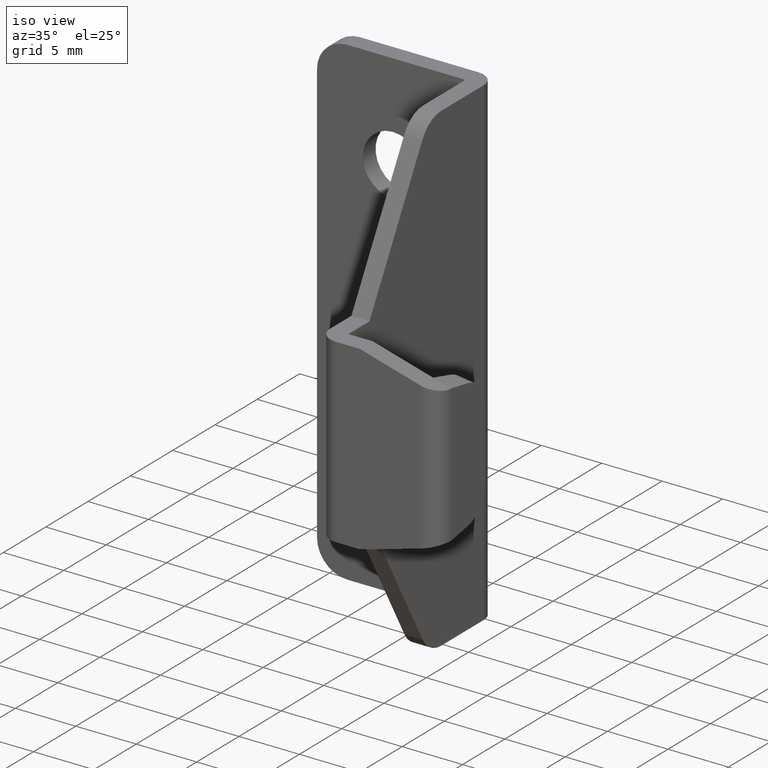
[diagram: clean part render]
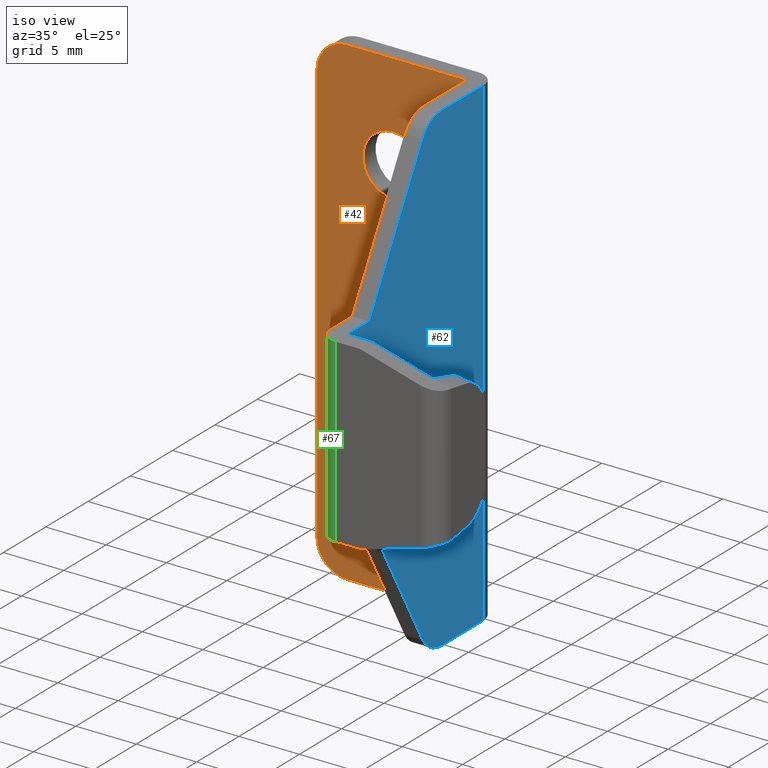
[diagram: same view with three faces highlighted in distinct colors, each labeled with its STEP entity id]
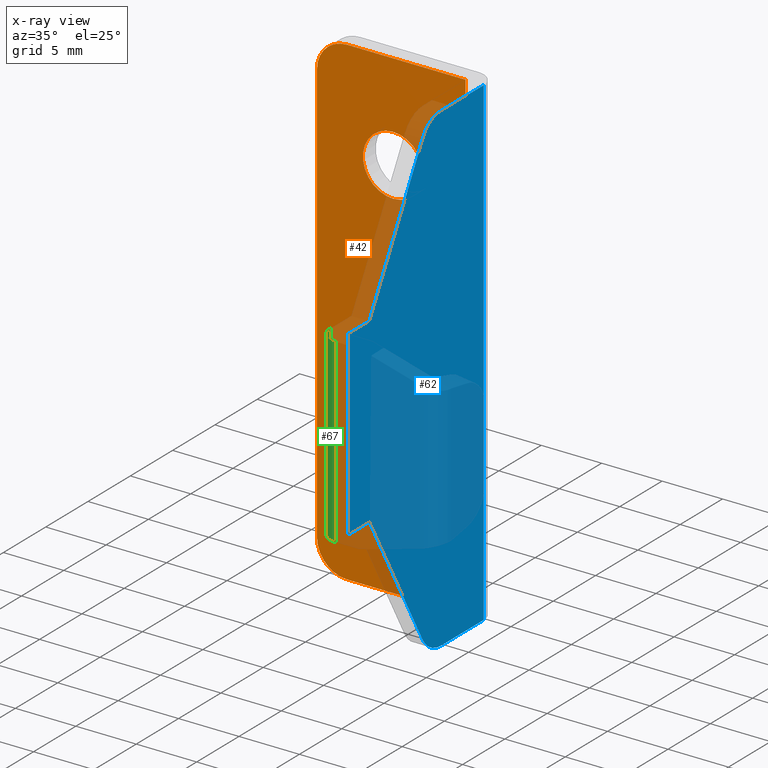
[diagram: x-ray of the same camera — body ghosted, the three highlighted faces saturated]
A machine part, iso view with three faces highlighted in distinct colors.
The next image is the same camera in x-ray (body ghosted, the three faces saturated) — at least one of them is partly hidden behind the body in this view.
Their STEP definitions:

[orange] entity #42 — the highlighted planar face has unit normal (0, -1, 0).
#42=ADVANCED_FACE('',(#94,#95,#96),#93,.T.);
#93=PLANE('',#428);
#94=FACE_OUTER_BOUND('',#429,.T.);
#95=FACE_BOUND('',#430,.T.);
#96=FACE_BOUND('',#431,.T.);
#425=CARTESIAN_POINT('',(-1.22999880000E+00,-1.50000000000E+00,2.40000000000E+01));
#426=DIRECTION('',(0.00000000000E+00,-1.00000000000E+00,0.00000000000E+00));
#427=DIRECTION('',(0.00000000000E+00,0.00000000000E+00,-1.00000000000E+00));
#428=AXIS2_PLACEMENT_3D('',#425,#426,#427);
#429=EDGE_LOOP('',(#600,#601,#602,#603,#604,#605));
#430=EDGE_LOOP('',(#606,#607));
#431=EDGE_LOOP('',(#608,#609));
#600=ORIENTED_EDGE('',*,*,#778,.F.);
#601=ORIENTED_EDGE('',*,*,#779,.F.);
#602=ORIENTED_EDGE('',*,*,#780,.T.);
#603=ORIENTED_EDGE('',*,*,#781,.F.);
#604=ORIENTED_EDGE('',*,*,#782,.T.);
#605=ORIENTED_EDGE('',*,*,#783,.F.);
#606=ORIENTED_EDGE('',*,*,#784,.F.);
#607=ORIENTED_EDGE('',*,*,#785,.F.);
#608=ORIENTED_EDGE('',*,*,#786,.F.);
#609=ORIENTED_EDGE('',*,*,#787,.F.);
#778=EDGE_CURVE('',#915,#916,#917,.T.);
#779=EDGE_CURVE('',#923,#915,#924,.T.);
#780=EDGE_CURVE('',#923,#930,#931,.T.);
#781=EDGE_CURVE('',#937,#930,#938,.T.);
#782=EDGE_CURVE('',#937,#944,#945,.T.);
#783=EDGE_CURVE('',#916,#944,#951,.T.);
#784=EDGE_CURVE('',#957,#958,#959,.T.);
#785=EDGE_CURVE('',#958,#957,#965,.T.);
#786=EDGE_CURVE('',#971,#972,#973,.T.);
#787=EDGE_CURVE('',#972,#971,#979,.T.);
#915=VERTEX_POINT('',#1515);
#916=VERTEX_POINT('',#1516);
#917=LINE('',#1517,#1518);
#923=VERTEX_POINT('',#1520);
#924=LINE('',#1521,#1522);
#930=VERTEX_POINT('',#1524);
#931=CIRCLE('',#1528,2.50000000000E+00);
#937=VERTEX_POINT('',#1529);
#938=LINE('',#1530,#1531);
#944=VERTEX_POINT('',#1533);
#945=CIRCLE('',#1537,2.50000000000E+00);
#951=LINE('',#1538,#1539);
#957=VERTEX_POINT('',#1541);
#958=VERTEX_POINT('',#1542);
#959=CIRCLE('',#1546,2.50000000000E+00);
#965=CIRCLE('',#1550,2.50000000000E+00);
#971=VERTEX_POINT('',#1551);
#972=VERTEX_POINT('',#1552);
#973=CIRCLE('',#1556,2.50000000000E+00);
#979=CIRCLE('',#1560,2.50000000000E+00);
#1515=CARTESIAN_POINT('',(1.22999880000E+01,-1.50000000000E+00,2.00000000000E+01));
#1516=CARTESIAN_POINT('',(1.22999880000E+01,-1.50000000000E+00,-2.00000000000E+01));
#1517=CARTESIAN_POINT('',(1.22999880000E+01,-1.50000000000E+00,2.00000000000E+01));
#1518=VECTOR('',#1519,4.00000000000E+01);
#1519=DIRECTION('',(0.00000000000E+00,0.00000000000E+00,-1.00000000000E+00));
#1520=CARTESIAN_POINT('',(2.50000000000E+00,-1.50000000000E+00,2.00000000000E+01));
#1521=CARTESIAN_POINT('',(2.50000000000E+00,-1.50000000000E+00,2.00000000000E+01));
#1522=VECTOR('',#1523,9.79998800000E+00);
#1523=DIRECTION('',(1.00000000000E+00,0.00000000000E+00,0.00000000000E+00));
#1524=CARTESIAN_POINT('',(0.00000000000E+00,-1.50000000000E+00,1.75000000000E+01));
#1525=CARTESIAN_POINT('',(2.50000000000E+00,-1.50000000000E+00,1.75000000000E+01));
#1526=DIRECTION('',(0.00000000000E+00,-1.00000000000E+00,0.00000000000E+00));
#1527=DIRECTION('',(-0.00000000000E+00,-0.00000000000E+00,1.00000000000E+00));
#1528=AXIS2_PLACEMENT_3D('',#1525,#1526,#1527);
#1529=CARTESIAN_POINT('',(0.00000000000E+00,-1.50000000000E+00,-1.75000000000E+01));
#1530=CARTESIAN_POINT('',(0.00000000000E+00,-1.50000000000E+00,-1.75000000000E+01));
#1531=VECTOR('',#1532,3.50000000000E+01);
#1532=DIRECTION('',(0.00000000000E+00,0.00000000000E+00,1.00000000000E+00));
#1533=CARTESIAN_POINT('',(2.50000000000E+00,-1.50000000000E+00,-2.00000000000E+01));
#1534=CARTESIAN_POINT('',(2.50000000000E+00,-1.50000000000E+00,-1.75000000000E+01));
#1535=DIRECTION('',(0.00000000000E+00,-1.00000000000E+00,0.00000000000E+00));
#1536=DIRECTION('',(-0.00000000000E+00,-0.00000000000E+00,1.00000000000E+00));
#1537=AXIS2_PLACEMENT_3D('',#1534,#1535,#1536);
#1538=CARTESIAN_POINT('',(1.22999880000E+01,-1.50000000000E+00,-2.00000000000E+01));
#1539=VECTOR('',#1540,9.79998800000E+00);
#1540=DIRECTION('',(-1.00000000000E+00,0.00000000000E+00,0.00000000000E+00));
#1541=CARTESIAN_POINT('',(6.29998800000E+00,-1.50000000000E+00,1.45000000000E+01));
#1542=CARTESIAN_POINT('',(6.29998800000E+00,-1.50000000000E+00,9.50000000000E+00));
#1543=CARTESIAN_POINT('',(6.29998800000E+00,-1.50000000000E+00,1.20000000000E+01));
#1544=DIRECTION('',(0.00000000000E+00,-1.00000000000E+00,-0.00000000000E+00));
#1545=DIRECTION('',(-1.22460635382E-16,0.00000000000E+00,-1.00000000000E+00));
#1546=AXIS2_PLACEMENT_3D('',#1543,#1544,#1545);
#1547=CARTESIAN_POINT('',(6.29998800000E+00,-1.50000000000E+00,1.20000000000E+01));
#1548=DIRECTION('',(0.00000000000E+00,-1.00000000000E+00,-0.00000000000E+00));
#1549=DIRECTION('',(-1.22460635382E-16,0.00000000000E+00,-1.00000000000E+00));
#1550=AXIS2_PLACEMENT_3D('',#1547,#1548,#1549);
#1551=CARTESIAN_POINT('',(6.29998800000E+00,-1.50000000000E+00,-9.50000000000E+00));
#1552=CARTESIAN_POINT('',(6.29998800000E+00,-1.50000000000E+00,-1.45000000000E+01));
#1553=CARTESIAN_POINT('',(6.29998800000E+00,-1.50000000000E+00,-1.20000000000E+01));
#1554=DIRECTION('',(0.00000000000E+00,-1.00000000000E+00,-0.00000000000E+00));
#1555=DIRECTION('',(-1.22460635382E-16,0.00000000000E+00,-1.00000000000E+00));
#1556=AXIS2_PLACEMENT_3D('',#1553,#1554,#1555);
#1557=CARTESIAN_POINT('',(6.29998800000E+00,-1.50000000000E+00,-1.20000000000E+01));
#1558=DIRECTION('',(0.00000000000E+00,-1.00000000000E+00,-0.00000000000E+00));
#1559=DIRECTION('',(-1.22460635382E-16,0.00000000000E+00,-1.00000000000E+00));
#1560=AXIS2_PLACEMENT_3D('',#1557,#1558,#1559);

[blue] entity #62 — the highlighted planar face has unit normal (1, 0, 0).
#62=ADVANCED_FACE('',(#298),#297,.T.);
#297=PLANE('',#532);
#298=FACE_OUTER_BOUND('',#533,.T.);
#529=CARTESIAN_POINT('',(1.37999880000E+01,-1.91000000000E+01,2.40000000000E+01));
#530=DIRECTION('',(1.00000000000E+00,0.00000000000E+00,0.00000000000E+00));
#531=DIRECTION('',(0.00000000000E+00,0.00000000000E+00,-1.00000000000E+00));
#532=AXIS2_PLACEMENT_3D('',#529,#530,#531);
#533=EDGE_LOOP('',(#716,#717,#718,#719,#720,#721,#722,#723,#724,#725));
#716=ORIENTED_EDGE('',*,*,#838,.F.);
#717=ORIENTED_EDGE('',*,*,#789,.T.);
#718=ORIENTED_EDGE('',*,*,#844,.F.);
#719=ORIENTED_EDGE('',*,*,#846,.T.);
#720=ORIENTED_EDGE('',*,*,#848,.F.);
#721=ORIENTED_EDGE('',*,*,#850,.F.);
#722=ORIENTED_EDGE('',*,*,#792,.T.);
#723=ORIENTED_EDGE('',*,*,#824,.F.);
#724=ORIENTED_EDGE('',*,*,#833,.F.);
#725=ORIENTED_EDGE('',*,*,#835,.T.);
#789=EDGE_CURVE('',#993,#985,#994,.T.);
#792=EDGE_CURVE('',#1013,#1014,#1015,.T.);
#824=EDGE_CURVE('',#1221,#1014,#1228,.T.);
#833=EDGE_CURVE('',#1286,#1221,#1287,.T.);
#835=EDGE_CURVE('',#1286,#1299,#1300,.T.);
#838=EDGE_CURVE('',#993,#1299,#1318,.T.);
#844=EDGE_CURVE('',#1358,#985,#1359,.T.);
#846=EDGE_CURVE('',#1358,#1371,#1372,.T.);
#848=EDGE_CURVE('',#1384,#1371,#1385,.T.);
#850=EDGE_CURVE('',#1013,#1384,#1397,.T.);
#985=VERTEX_POINT('',#1561);
#993=VERTEX_POINT('',#1567);
#994=LINE('',#1568,#1569);
#1013=VERTEX_POINT('',#1579);
#1014=VERTEX_POINT('',#1580);
#1015=LINE('',#1581,#1582);
#1221=VERTEX_POINT('',#1717);
#1228=LINE('',#1721,#1722);
#1286=VERTEX_POINT('',#1754);
#1287=LINE('',#1755,#1756);
#1299=VERTEX_POINT('',#1761);
#1300=CIRCLE('',#1765,2.50000000000E+00);
#1318=LINE('',#1772,#1773);
#1358=VERTEX_POINT('',#1798);
#1359=LINE('',#1799,#1800);
#1371=VERTEX_POINT('',#1805);
#1372=CIRCLE('',#1809,2.50000000000E+00);
#1384=VERTEX_POINT('',#1813);
#1385=LINE('',#1814,#1815);
#1397=LINE('',#1820,#1821);
#1561=CARTESIAN_POINT('',(1.37999880000E+01,-1.50000000000E+00,2.00000000000E+01));
#1567=CARTESIAN_POINT('',(1.37999880000E+01,-1.50000000000E+00,-2.00000000000E+01));
#1568=CARTESIAN_POINT('',(1.37999880000E+01,-1.50000000000E+00,-2.00000000000E+01));
#1569=VECTOR('',#1570,4.00000000000E+01);
#1570=DIRECTION('',(0.00000000000E+00,0.00000000000E+00,1.00000000000E+00));
#1579=CARTESIAN_POINT('',(1.37999880000E+01,-1.75000000000E+01,7.50000000000E+00));
#1580=CARTESIAN_POINT('',(1.37999880000E+01,-1.75000000000E+01,-7.50000000000E+00));
#1581=CARTESIAN_POINT('',(1.37999880000E+01,-1.75000000000E+01,7.50000000000E+00));
#1582=VECTOR('',#1583,1.50000000000E+01);
#1583=DIRECTION('',(0.00000000000E+00,0.00000000000E+00,-1.00000000000E+00));
#1717=CARTESIAN_POINT('',(1.37999880000E+01,-1.49999826400E+01,-7.50000000000E+00));
#1721=CARTESIAN_POINT('',(1.37999880000E+01,-1.49999826400E+01,-7.50000000000E+00));
#1722=VECTOR('',#1723,2.50001736001E+00);
#1723=DIRECTION('',(0.00000000000E+00,-1.00000000000E+00,0.00000000000E+00));
#1754=CARTESIAN_POINT('',(1.37999880000E+01,-8.71593436612E+00,-1.87215089085E+01));
#1755=CARTESIAN_POINT('',(1.37999880000E+01,-8.71593436612E+00,-1.87215089085E+01));
#1756=VECTOR('',#1757,1.28612411878E+01);
#1757=DIRECTION('',(0.00000000000E+00,-4.88603563382E-01,8.72505907058E-01));
#1761=CARTESIAN_POINT('',(1.37999880000E+01,-6.53466959847E+00,-2.00000000000E+01));
#1762=CARTESIAN_POINT('',(1.37999880000E+01,-6.53466959847E+00,-1.75000000000E+01));
#1763=DIRECTION('',(1.00000000000E+00,0.00000000000E+00,0.00000000000E+00));
#1764=DIRECTION('',(-0.00000000000E+00,-0.00000000000E+00,1.00000000000E+00));
#1765=AXIS2_PLACEMENT_3D('',#1762,#1763,#1764);
#1772=CARTESIAN_POINT('',(1.37999880000E+01,-1.50000000000E+00,-2.00000000000E+01));
#1773=VECTOR('',#1774,5.03466959847E+00);
#1774=DIRECTION('',(0.00000000000E+00,-1.00000000000E+00,0.00000000000E+00));
#1798=CARTESIAN_POINT('',(1.37999880000E+01,-6.53473041134E+00,2.00000000000E+01));
#1799=CARTESIAN_POINT('',(1.37999880000E+01,-6.53473041134E+00,2.00000000000E+01));
#1800=VECTOR('',#1801,5.03473041134E+00);
#1801=DIRECTION('',(0.00000000000E+00,1.00000000000E+00,0.00000000000E+00));
#1805=CARTESIAN_POINT('',(1.37999880000E+01,-8.71599585956E+00,1.87215076931E+01));
#1806=CARTESIAN_POINT('',(1.37999880000E+01,-6.53473041134E+00,1.75000000000E+01));
#1807=DIRECTION('',(1.00000000000E+00,0.00000000000E+00,0.00000000000E+00));
#1808=DIRECTION('',(-0.00000000000E+00,-0.00000000000E+00,1.00000000000E+00));
#1809=AXIS2_PLACEMENT_3D('',#1806,#1807,#1808);
#1813=CARTESIAN_POINT('',(1.37999880000E+01,-1.50000352400E+01,7.50000000000E+00));
#1814=CARTESIAN_POINT('',(1.37999880000E+01,-1.50000352400E+01,7.50000000000E+00));
#1815=VECTOR('',#1816,1.28612357821E+01);
#1816=DIRECTION('',(0.00000000000E+00,4.88603077257E-01,8.72506179287E-01));
#1820=CARTESIAN_POINT('',(1.37999880000E+01,-1.75000000000E+01,7.50000000000E+00));
#1821=VECTOR('',#1822,2.49996475998E+00);
#1822=DIRECTION('',(0.00000000000E+00,1.00000000000E+00,0.00000000000E+00));

[green] entity #67 — the highlighted cylindrical surface (edge-blend (fillet) strip) has radius 1.5 mm, axis along (-0, -0, -1).
#67=ADVANCED_FACE('',(#348),#347,.T.);
#347=CYLINDRICAL_SURFACE('',#565,1.50000000000E+00);
#348=FACE_OUTER_BOUND('',#566,.T.);
#562=CARTESIAN_POINT('',(1.37999880000E+01,-1.75000000000E+01,-7.50000000000E+00));
#563=DIRECTION('',(-0.00000000000E+00,-0.00000000000E+00,-1.00000000000E+00));
#564=DIRECTION('',(-1.00000000000E+00,-0.00000000000E+00,-0.00000000000E+00));
#565=AXIS2_PLACEMENT_3D('',#562,#563,#564);
#566=EDGE_LOOP('',(#746,#747,#748,#749));
#746=ORIENTED_EDGE('',*,*,#822,.F.);
#747=ORIENTED_EDGE('',*,*,#803,.F.);
#748=ORIENTED_EDGE('',*,*,#852,.F.);
#749=ORIENTED_EDGE('',*,*,#814,.F.);
#803=EDGE_CURVE('',#1081,#1088,#1089,.T.);
#814=EDGE_CURVE('',#1154,#1161,#1162,.T.);
#822=EDGE_CURVE('',#1088,#1154,#1215,.T.);
#852=EDGE_CURVE('',#1161,#1081,#1409,.T.);
#1081=VERTEX_POINT('',#1628);
#1088=VERTEX_POINT('',#1632);
#1089=LINE('',#1633,#1634);
#1154=VERTEX_POINT('',#1677);
#1161=VERTEX_POINT('',#1681);
#1162=LINE('',#1682,#1683);
#1215=CIRCLE('',#1716,1.50000000000E+00);
#1409=CIRCLE('',#1829,1.50000000000E+00);
#1628=CARTESIAN_POINT('',(1.37999880000E+01,-1.90000000000E+01,7.50000000000E+00));
#1632=CARTESIAN_POINT('',(1.37999880000E+01,-1.90000000000E+01,-7.50000000000E+00));
#1633=CARTESIAN_POINT('',(1.37999880000E+01,-1.90000000000E+01,7.50000000000E+00));
#1634=VECTOR('',#1635,1.50000000000E+01);
#1635=DIRECTION('',(0.00000000000E+00,0.00000000000E+00,-1.00000000000E+00));
#1677=CARTESIAN_POINT('',(1.22999880000E+01,-1.75000000000E+01,-7.50000000000E+00));
#1681=CARTESIAN_POINT('',(1.22999880000E+01,-1.75000000000E+01,7.50000000000E+00));
#1682=CARTESIAN_POINT('',(1.22999880000E+01,-1.75000000000E+01,-7.50000000000E+00));
#1683=VECTOR('',#1684,1.50000000000E+01);
#1684=DIRECTION('',(0.00000000000E+00,0.00000000000E+00,1.00000000000E+00));
#1713=CARTESIAN_POINT('',(1.37999880000E+01,-1.75000000000E+01,-7.50000000000E+00));
#1714=DIRECTION('',(0.00000000000E+00,0.00000000000E+00,-1.00000000000E+00));
#1715=DIRECTION('',(-1.00000000000E+00,-0.00000000000E+00,-0.00000000000E+00));
#1716=AXIS2_PLACEMENT_3D('',#1713,#1714,#1715);
#1826=CARTESIAN_POINT('',(1.37999880000E+01,-1.75000000000E+01,7.50000000000E+00));
#1827=DIRECTION('',(0.00000000000E+00,-0.00000000000E+00,1.00000000000E+00));
#1828=DIRECTION('',(1.00000000000E+00,-0.00000000000E+00,-0.00000000000E+00));
#1829=AXIS2_PLACEMENT_3D('',#1826,#1827,#1828);